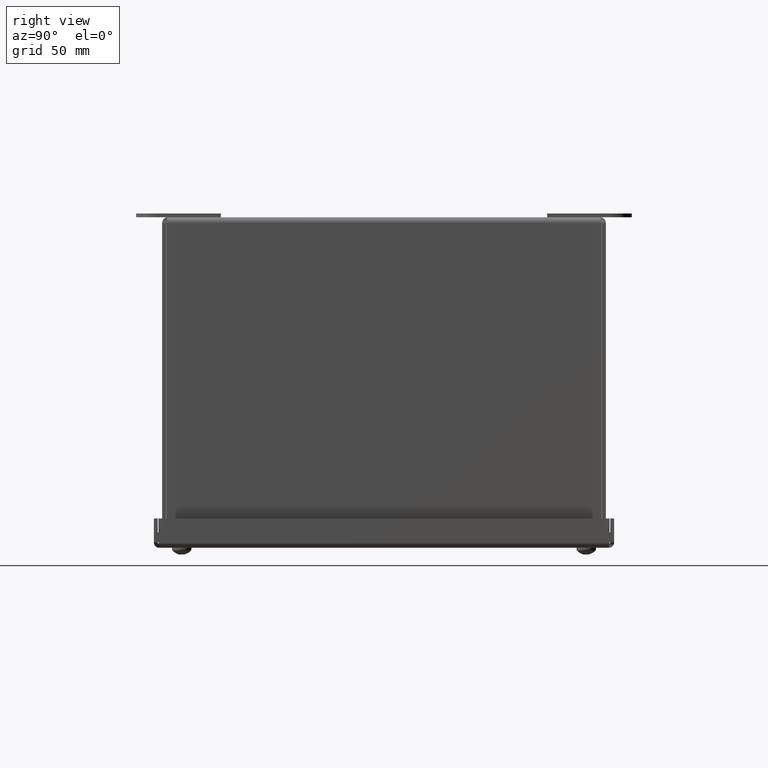
[diagram: clean part render]
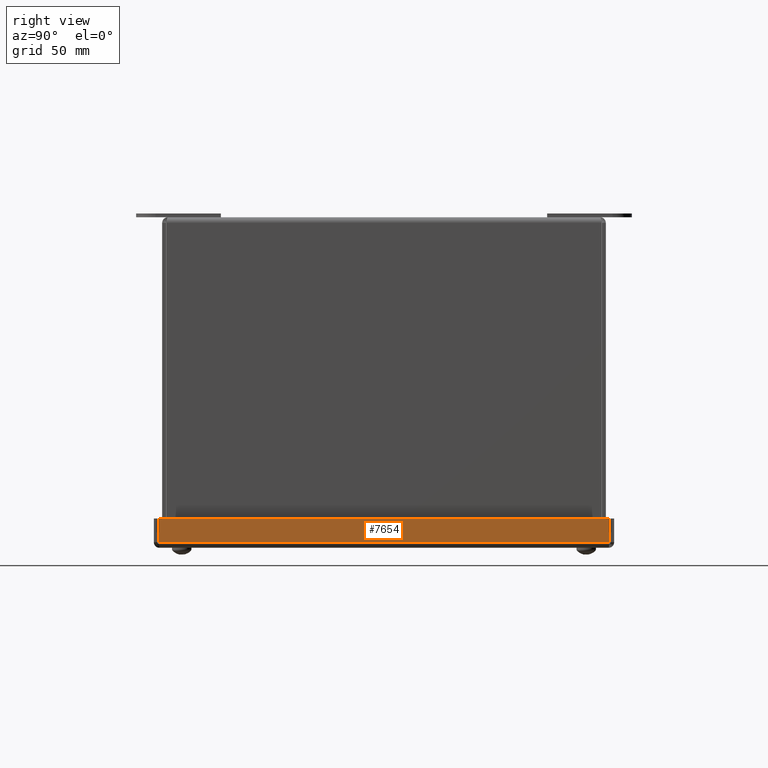
[diagram: same view with one face highlighted and labeled with its STEP entity id]
A machine part, right view. The second image highlights one B-rep face of the part: STEP entity #7654.
In plain terms, the highlighted planar face has unit normal (-1, 0, -0).
Its self-contained STEP definition (entity closure, byte-faithful):
#786=FACE_OUTER_BOUND('',#1225,.T.);
#1225=EDGE_LOOP('',(#4991,#4992,#4993,#4994));
#1797=LINE('',#11068,#2511);
#1798=LINE('',#11071,#2512);
#1799=LINE('',#11073,#2513);
#1800=LINE('',#11074,#2514);
#2511=VECTOR('',#8842,0.454750000000004);
#2512=VECTOR('',#8845,8.64000000000001);
#2513=VECTOR('',#8846,0.454749999999999);
#2514=VECTOR('',#8847,8.64);
#3213=VERTEX_POINT('',#10993);
#3225=VERTEX_POINT('',#11066);
#3226=VERTEX_POINT('',#11070);
#3227=VERTEX_POINT('',#11072);
#3929=EDGE_CURVE('',#3225,#3213,#1797,.T.);
#3930=EDGE_CURVE('',#3226,#3225,#1798,.T.);
#3931=EDGE_CURVE('',#3227,#3226,#1799,.T.);
#3932=EDGE_CURVE('',#3227,#3213,#1800,.T.);
#4991=ORIENTED_EDGE('',*,*,#3929,.F.);
#4992=ORIENTED_EDGE('',*,*,#3930,.F.);
#4993=ORIENTED_EDGE('',*,*,#3931,.F.);
#4994=ORIENTED_EDGE('',*,*,#3932,.T.);
#7061=PLANE('',#8106);
#7654=ADVANCED_FACE('',(#786),#7061,.F.);
#8106=AXIS2_PLACEMENT_3D('',#11069,#8843,#8844);
#8842=DIRECTION('',(2.23149076674267E-14,-3.0757694837957E-14,-1.));
#8843=DIRECTION('center_axis',(-1.,-4.26492600970767E-16,-2.23149076674267E-14));
#8844=DIRECTION('ref_axis',(-2.25597318603832E-14,0.,1.));
#8845=DIRECTION('',(-4.81215917486636E-16,1.,-4.86681436076668E-16));
#8846=DIRECTION('',(-2.23149076674267E-14,4.80588981843081E-16,1.));
#8847=DIRECTION('',(-4.26492600970767E-16,1.,-6.17032420504687E-30));
#10993=CARTESIAN_POINT('',(7.88,8.73,0.105249999999994));
#11066=CARTESIAN_POINT('',(7.87999999999998,8.73000000000002,0.559999999999998));
#11068=CARTESIAN_POINT('',(7.87999999999999,8.73000000000001,0.314701321722909));
#11069=CARTESIAN_POINT('Origin',(7.87999999999999,4.41,0.296777643445954));
#11070=CARTESIAN_POINT('',(7.87999999999999,0.0900000000000017,0.560000000000003));
#11071=CARTESIAN_POINT('',(7.87999999999999,0.0747071067811874,0.560000000000003));
#11072=CARTESIAN_POINT('',(7.88,0.0900000000000001,0.105250000000004));
#11073=CARTESIAN_POINT('',(7.87999999999999,0.0900000000000014,0.314701321722979));
#11074=CARTESIAN_POINT('',(7.88,4.41,0.10525));